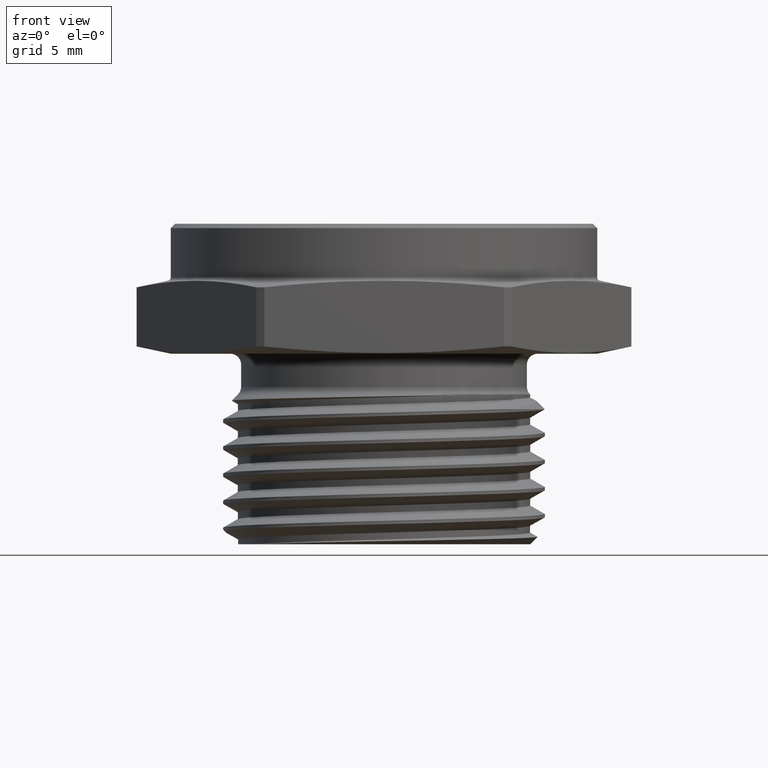
[diagram: clean part render]
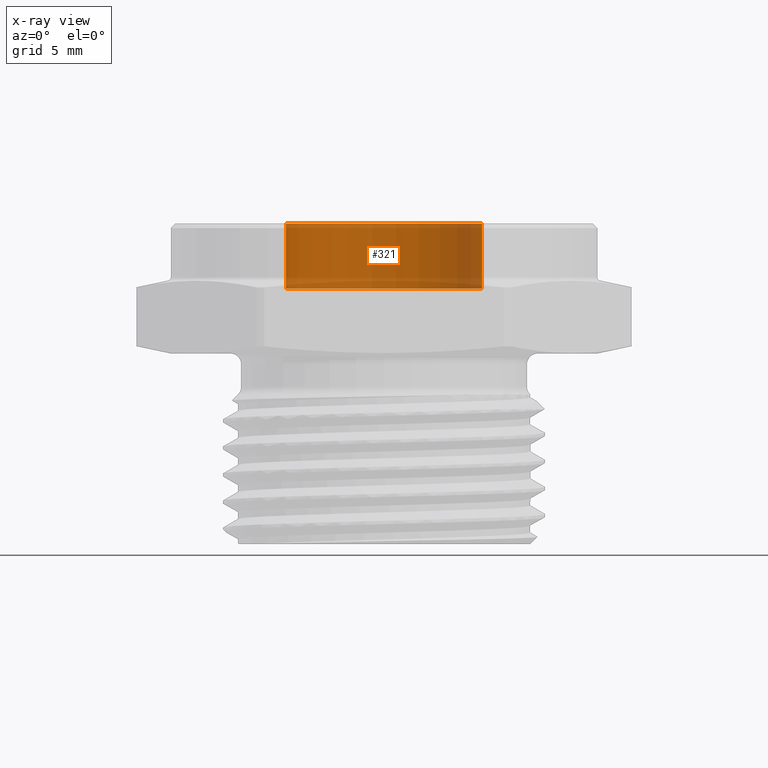
[diagram: x-ray — body ghosted, one internal face saturated and labeled with its STEP entity id]
A machine part, front view, then the same camera in x-ray: the body is ghosted and one INTERNAL B-rep face — a face not visible from any outside direction — is saturated and labeled: STEP entity #321.
In plain terms, the highlighted cylindrical surface (partial cylindrical patch) has radius 5.7531 mm, axis along (0, 0, 1).
Its self-contained STEP definition (entity closure, byte-faithful):
#220 = AXIS2_PLACEMENT_3D ( 'NONE', #1250, #1251, #1230 ) ;
#287 = AXIS2_PLACEMENT_3D ( 'NONE', #1777, #1778, #1779 ) ;
#288 = AXIS2_PLACEMENT_3D ( 'NONE', #1781, #1782, #1783 ) ;
#321 = ADVANCED_FACE ( 'NONE', ( #2623 ), #2139, .T. ) ;
#889 = CIRCLE ( 'NONE', #287, 0.2265000000000000100 ) ;
#890 = LINE ( 'NONE', #1780, #896 ) ;
#891 = LINE ( 'NONE', #1774, #892 ) ;
#892 = VECTOR ( 'NONE', #1775, 39.37007874015748100 ) ;
#893 = CIRCLE ( 'NONE', #288, 0.2265000000000000100 ) ;
#896 = VECTOR ( 'NONE', #1776, 39.37007874015748100 ) ;
#1230 = DIRECTION ( 'NONE',  ( 1.000000000000000000, 0.0000000000000000000, 0.0000000000000000000 ) ) ;
#1250 = CARTESIAN_POINT ( 'NONE',  ( 0.0000000000000000000, 0.0000000000000000000, 0.1500000000000000200 ) ) ;
#1251 = DIRECTION ( 'NONE',  ( 0.0000000000000000000, 0.0000000000000000000, 1.000000000000000000 ) ) ;
#1774 = CARTESIAN_POINT ( 'NONE',  ( -0.2265000000000000100, 2.773825000068754100E-017, 0.1500000000000000200 ) ) ;
#1775 = DIRECTION ( 'NONE',  ( 0.0000000000000000000, 0.0000000000000000000, 1.000000000000000000 ) ) ;
#1776 = DIRECTION ( 'NONE',  ( 0.0000000000000000000, 0.0000000000000000000, 1.000000000000000000 ) ) ;
#1777 = CARTESIAN_POINT ( 'NONE',  ( 0.0000000000000000000, 0.0000000000000000000, 0.1500000000000000200 ) ) ;
#1778 = DIRECTION ( 'NONE',  ( 0.0000000000000000000, 0.0000000000000000000, 1.000000000000000000 ) ) ;
#1779 = DIRECTION ( 'NONE',  ( 1.000000000000000000, 0.0000000000000000000, 0.0000000000000000000 ) ) ;
#1780 = CARTESIAN_POINT ( 'NONE',  ( 0.2265000000000000100, 0.0000000000000000000, 0.1500000000000000200 ) ) ;
#1781 = CARTESIAN_POINT ( 'NONE',  ( 0.0000000000000000000, 0.0000000000000000000, 0.2999999999999999900 ) ) ;
#1782 = DIRECTION ( 'NONE',  ( 0.0000000000000000000, 0.0000000000000000000, 1.000000000000000000 ) ) ;
#1783 = DIRECTION ( 'NONE',  ( 1.000000000000000000, 0.0000000000000000000, 0.0000000000000000000 ) ) ;
#1805 = CARTESIAN_POINT ( 'NONE',  ( -0.2265000000000000100, 2.773825000068754100E-017, 0.2999999999999999900 ) ) ;
#1821 = CARTESIAN_POINT ( 'NONE',  ( -0.2265000000000000100, 2.773825000068754100E-017, 0.1500000000000000200 ) ) ;
#1836 = CARTESIAN_POINT ( 'NONE',  ( 0.2265000000000000100, 0.0000000000000000000, 0.1500000000000000200 ) ) ;
#1847 = CARTESIAN_POINT ( 'NONE',  ( 0.2265000000000000100, 0.0000000000000000000, 0.2999999999999999900 ) ) ;
#2139 = CYLINDRICAL_SURFACE ( 'NONE', #220, 0.2265000000000000100 ) ;
#2298 = EDGE_LOOP ( 'NONE', ( #2631, #2632, #2633, #2634 ) ) ;
#2444 = EDGE_CURVE ( 'NONE', #2478, #2460, #891, .T. ) ;
#2445 = EDGE_CURVE ( 'NONE', #2673, #2478, #889, .T. ) ;
#2446 = EDGE_CURVE ( 'NONE', #2959, #2460, #893, .T. ) ;
#2447 = EDGE_CURVE ( 'NONE', #2673, #2959, #890, .T. ) ;
#2460 = VERTEX_POINT ( 'NONE', #1805 ) ;
#2478 = VERTEX_POINT ( 'NONE', #1821 ) ;
#2623 = FACE_OUTER_BOUND ( 'NONE', #2298, .T. ) ;
#2631 = ORIENTED_EDGE ( 'NONE', *, *, #2445, .T. ) ;
#2632 = ORIENTED_EDGE ( 'NONE', *, *, #2444, .T. ) ;
#2633 = ORIENTED_EDGE ( 'NONE', *, *, #2446, .F. ) ;
#2634 = ORIENTED_EDGE ( 'NONE', *, *, #2447, .F. ) ;
#2673 = VERTEX_POINT ( 'NONE', #1836 ) ;
#2959 = VERTEX_POINT ( 'NONE', #1847 ) ;